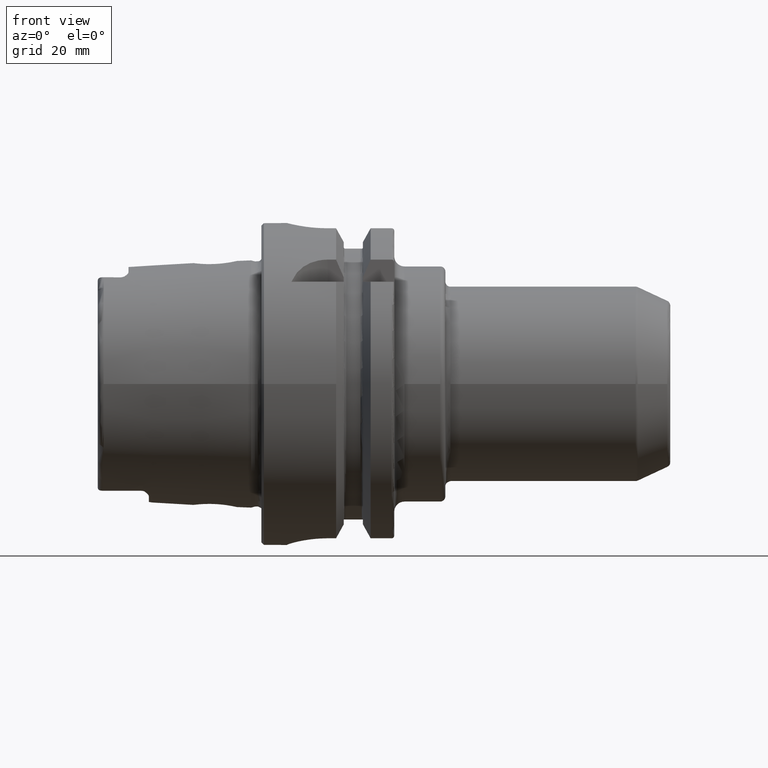
[diagram: clean part render]
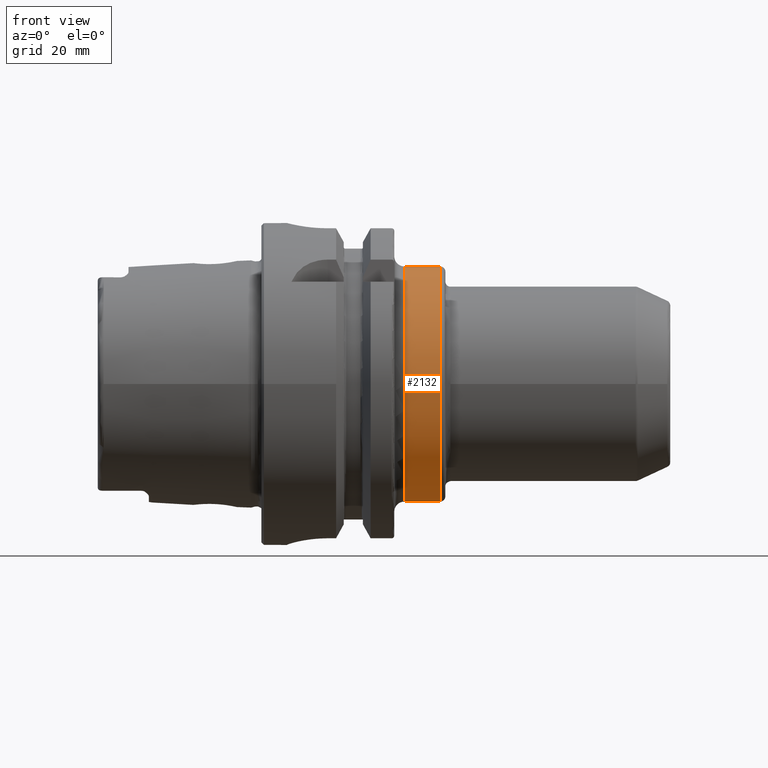
[diagram: same view with one face highlighted and labeled with its STEP entity id]
A machine part, front view. The second image highlights one B-rep face of the part: STEP entity #2132.
In plain terms, the highlighted cylindrical surface (bore or boss wall) has radius 23 mm, axis along (1, 0, 0).
Its self-contained STEP definition (entity closure, byte-faithful):
#196=CYLINDRICAL_SURFACE('',#2296,23.);
#240=FACE_OUTER_BOUND('',#371,.T.);
#371=EDGE_LOOP('',(#1461,#1462,#1463,#1464,#1465,#1466));
#513=LINE('',#3250,#625);
#625=VECTOR('',#2601,23.);
#737=CIRCLE('',#2292,23.);
#740=CIRCLE('',#2295,23.);
#741=CIRCLE('',#2297,23.);
#742=CIRCLE('',#2298,23.);
#881=VERTEX_POINT('',#3239);
#882=VERTEX_POINT('',#3240);
#884=VERTEX_POINT('',#3247);
#885=VERTEX_POINT('',#3248);
#1106=EDGE_CURVE('',#881,#882,#737,.T.);
#1109=EDGE_CURVE('',#882,#881,#740,.T.);
#1110=EDGE_CURVE('',#884,#885,#741,.T.);
#1111=EDGE_CURVE('',#884,#881,#513,.T.);
#1112=EDGE_CURVE('',#885,#884,#742,.T.);
#1461=ORIENTED_EDGE('',*,*,#1110,.F.);
#1462=ORIENTED_EDGE('',*,*,#1111,.T.);
#1463=ORIENTED_EDGE('',*,*,#1109,.F.);
#1464=ORIENTED_EDGE('',*,*,#1106,.F.);
#1465=ORIENTED_EDGE('',*,*,#1111,.F.);
#1466=ORIENTED_EDGE('',*,*,#1112,.F.);
#2132=ADVANCED_FACE('',(#240),#196,.T.);
#2292=AXIS2_PLACEMENT_3D('',#3241,#2589,#2590);
#2295=AXIS2_PLACEMENT_3D('',#3245,#2595,#2596);
#2296=AXIS2_PLACEMENT_3D('',#3246,#2597,#2598);
#2297=AXIS2_PLACEMENT_3D('',#3249,#2599,#2600);
#2298=AXIS2_PLACEMENT_3D('',#3251,#2602,#2603);
#2589=DIRECTION('center_axis',(-1.,0.,0.));
#2590=DIRECTION('ref_axis',(0.,-1.,-1.22464679914735E-16));
#2595=DIRECTION('center_axis',(-1.,0.,0.));
#2596=DIRECTION('ref_axis',(0.,-1.,-1.22464679914735E-16));
#2597=DIRECTION('center_axis',(1.,0.,0.));
#2598=DIRECTION('ref_axis',(0.,1.,0.));
#2599=DIRECTION('center_axis',(1.,0.,0.));
#2600=DIRECTION('ref_axis',(0.,-1.,1.83697019872103E-16));
#2601=DIRECTION('',(-1.,0.,0.));
#2602=DIRECTION('center_axis',(1.,0.,0.));
#2603=DIRECTION('ref_axis',(0.,-1.,1.83697019872103E-16));
#3239=CARTESIAN_POINT('',(28.,-23.,-2.81668763803891E-15));
#3240=CARTESIAN_POINT('',(28.,-2.81668763803891E-15,-23.));
#3241=CARTESIAN_POINT('Origin',(28.,0.,0.));
#3245=CARTESIAN_POINT('Origin',(28.,0.,0.));
#3246=CARTESIAN_POINT('Origin',(31.,0.,0.));
#3247=CARTESIAN_POINT('',(35.,-23.,-2.81668763803891E-15));
#3248=CARTESIAN_POINT('',(35.,-2.81668763803891E-15,23.));
#3249=CARTESIAN_POINT('Origin',(35.,0.,0.));
#3250=CARTESIAN_POINT('',(31.,-23.,-2.81668763803891E-15));
#3251=CARTESIAN_POINT('Origin',(35.,0.,0.));